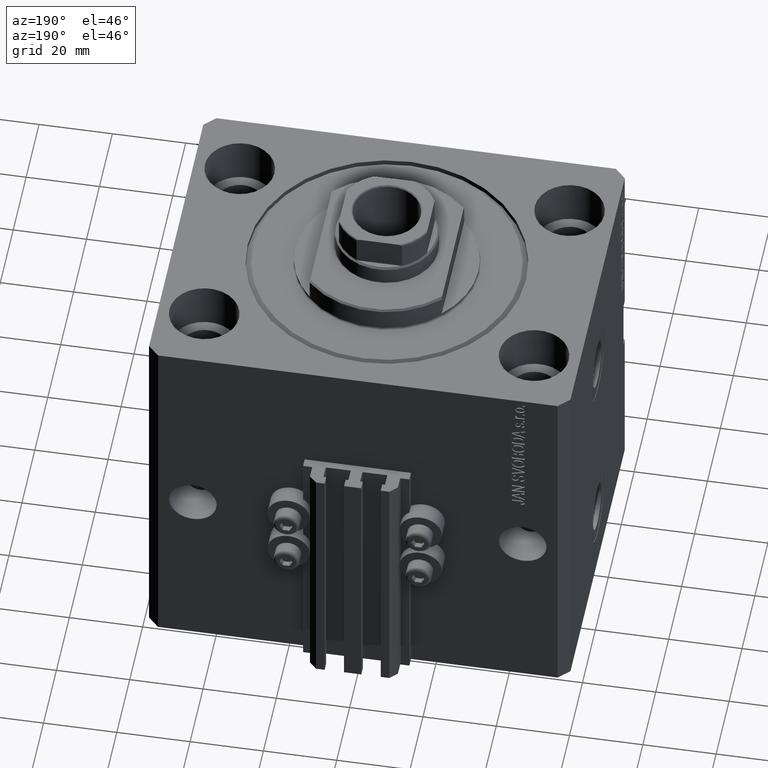
[diagram: clean part render]
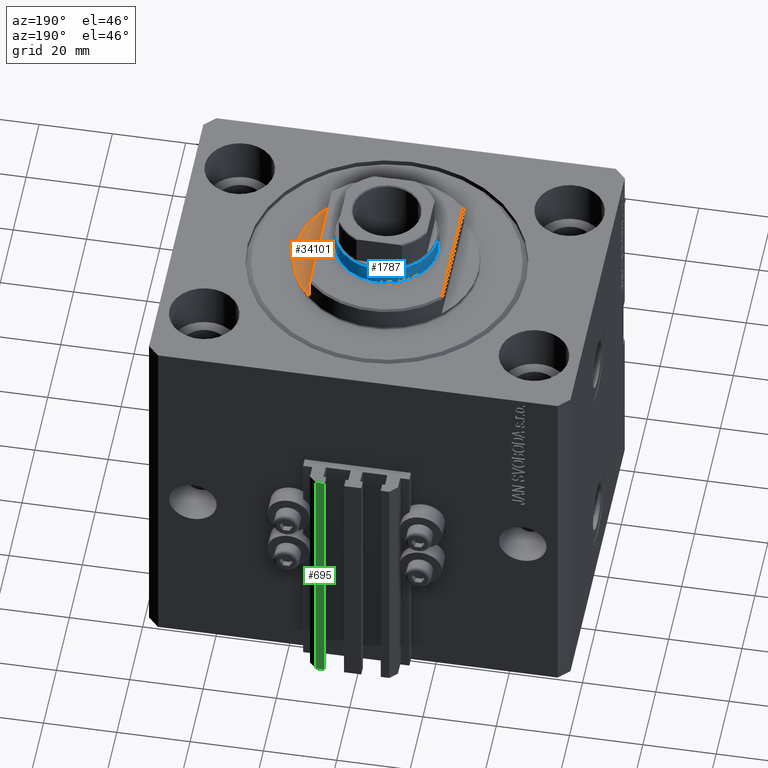
[diagram: same view with three faces highlighted in distinct colors, each labeled with its STEP entity id]
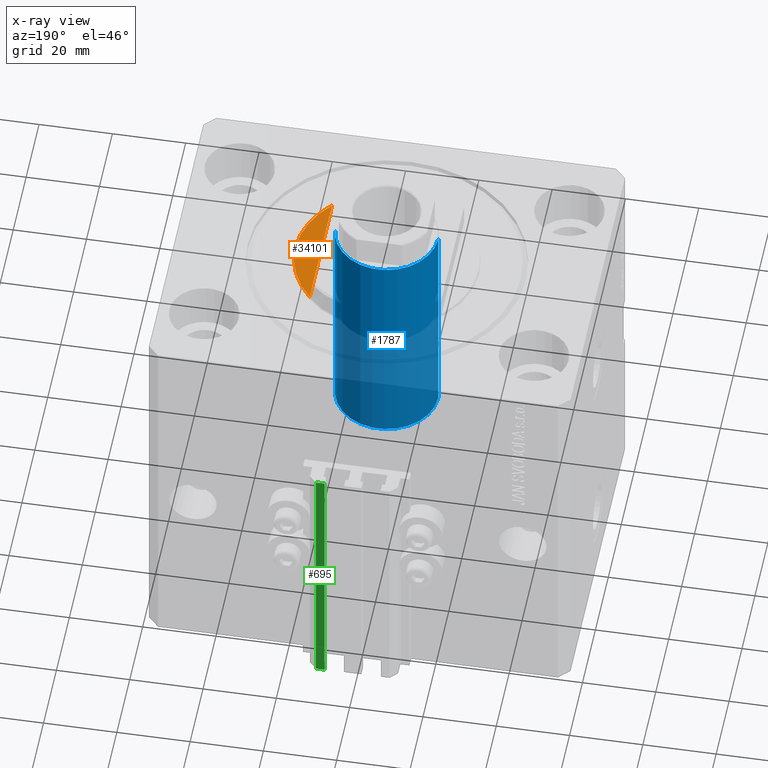
[diagram: x-ray of the same camera — body ghosted, the three highlighted faces saturated]
A machine part, auxiliary view with three faces highlighted in distinct colors.
The next image is the same camera in x-ray (body ghosted, the three faces saturated) — at least one of them is partly hidden behind the body in this view.
Their STEP definitions:

[orange] entity #34101 — the highlighted planar face has unit normal (0, 0, 1).
#1798 = DIRECTION ( 'NONE',  ( 0.000000000000000000, 0.000000000000000000, -1.000000000000000000 ) ) ;
#1898 = CIRCLE ( 'NONE', #40409, 25.00000000000000000 ) ;
#2171 = FACE_OUTER_BOUND ( 'NONE', #11130, .T. ) ;
#2416 = PLANE ( 'NONE',  #7955 ) ;
#2944 = DIRECTION ( 'NONE',  ( 0.000000000000000000, 0.000000000000000000, -1.000000000000000000 ) ) ;
#3942 = ORIENTED_EDGE ( 'NONE', *, *, #14580, .T. ) ;
#7955 = AXIS2_PLACEMENT_3D ( 'NONE', #46965, #43023, #32436 ) ;
#9362 = EDGE_CURVE ( 'NONE', #21837, #17000, #21436, .T. ) ;
#9873 = DIRECTION ( 'NONE',  ( -0.000000000000000000, -1.000000000000000000, -0.000000000000000000 ) ) ;
#11130 = EDGE_LOOP ( 'NONE', ( #35664, #3942, #34990 ) ) ;
#13053 = CIRCLE ( 'NONE', #32705, 25.00000000000000000 ) ;
#14580 = EDGE_CURVE ( 'NONE', #17551, #21837, #1898, .T. ) ;
#17000 = VERTEX_POINT ( 'NONE', #44602 ) ;
#17551 = VERTEX_POINT ( 'NONE', #43511 ) ;
#17743 = DIRECTION ( 'NONE',  ( -1.000000000000000000, 0.000000000000000000, 0.000000000000000000 ) ) ;
#17994 = CARTESIAN_POINT ( 'NONE',  ( -18.00000000000000000, -41.24318125460256113, -1.000000000000000000 ) ) ;
#21436 = LINE ( 'NONE', #17994, #35526 ) ;
#21837 = VERTEX_POINT ( 'NONE', #28411 ) ;
#22504 = EDGE_CURVE ( 'NONE', #17000, #17551, #13053, .T. ) ;
#27655 = DIRECTION ( 'NONE',  ( -1.000000000000000000, 0.000000000000000000, 0.000000000000000000 ) ) ;
#28411 = CARTESIAN_POINT ( 'NONE',  ( -18.00000000000000000, 17.34935157289747920, -1.000000000000000000 ) ) ;
#32436 = DIRECTION ( 'NONE',  ( -1.000000000000000000, 0.000000000000000000, -0.000000000000000000 ) ) ;
#32705 = AXIS2_PLACEMENT_3D ( 'NONE', #44763, #2944, #17743 ) ;
#34101 = ADVANCED_FACE ( 'NONE', ( #2171 ), #2416, .T. ) ;
#34990 = ORIENTED_EDGE ( 'NONE', *, *, #9362, .T. ) ;
#35526 = VECTOR ( 'NONE', #9873, 1000.000000000000000 ) ;
#35664 = ORIENTED_EDGE ( 'NONE', *, *, #22504, .T. ) ;
#40409 = AXIS2_PLACEMENT_3D ( 'NONE', #45881, #1798, #27655 ) ;
#43023 = DIRECTION ( 'NONE',  ( 0.000000000000000000, 0.000000000000000000, -1.000000000000000000 ) ) ;
#43511 = CARTESIAN_POINT ( 'NONE',  ( -25.00000000000000000, 3.061616997868383043E-15, -1.000000000000000000 ) ) ;
#44602 = CARTESIAN_POINT ( 'NONE',  ( -18.00000000000000000, -17.34935157289747920, -1.000000000000000000 ) ) ;
#44763 = CARTESIAN_POINT ( 'NONE',  ( 0.000000000000000000, 0.000000000000000000, -1.000000000000000000 ) ) ;
#45881 = CARTESIAN_POINT ( 'NONE',  ( 0.000000000000000000, 0.000000000000000000, -1.000000000000000000 ) ) ;
#46965 = CARTESIAN_POINT ( 'NONE',  ( 0.000000000000000000, 0.000000000000000000, -1.000000000000000000 ) ) ;

[blue] entity #1787 — the highlighted cylindrical surface (partial cylindrical patch) has radius 14 mm, axis along (-0, -0, -1).
#1141 = CARTESIAN_POINT ( 'NONE',  ( 14.00000000000000000, 1.714505518806294638E-15, 98.50000000000000000 ) ) ;
#1300 = ORIENTED_EDGE ( 'NONE', *, *, #17151, .T. ) ;
#1787 = ADVANCED_FACE ( 'NONE', ( #36692 ), #3224, .T. ) ;
#2075 = VECTOR ( 'NONE', #4146, 1000.000000000000000 ) ;
#3224 = CYLINDRICAL_SURFACE ( 'NONE', #45560, 14.00000000000000000 ) ;
#4146 = DIRECTION ( 'NONE',  ( -0.000000000000000000, -0.000000000000000000, -1.000000000000000000 ) ) ;
#7025 = CARTESIAN_POINT ( 'NONE',  ( 0.000000000000000000, 0.000000000000000000, 98.50000000000000000 ) ) ;
#8946 = VERTEX_POINT ( 'NONE', #1141 ) ;
#9881 = DIRECTION ( 'NONE',  ( 1.000000000000000000, 0.000000000000000000, 0.000000000000000000 ) ) ;
#12226 = AXIS2_PLACEMENT_3D ( 'NONE', #42841, #35941, #9881 ) ;
#12271 = LINE ( 'NONE', #30946, #14889 ) ;
#13724 = EDGE_CURVE ( 'NONE', #16287, #8946, #36480, .T. ) ;
#14647 = CARTESIAN_POINT ( 'NONE',  ( -14.00000000000000000, 0.000000000000000000, 37.00000000000000000 ) ) ;
#14889 = VECTOR ( 'NONE', #45970, 1000.000000000000000 ) ;
#15148 = DIRECTION ( 'NONE',  ( 1.000000000000000000, 0.000000000000000000, 0.000000000000000000 ) ) ;
#15153 = VERTEX_POINT ( 'NONE', #18963 ) ;
#15280 = AXIS2_PLACEMENT_3D ( 'NONE', #7025, #19090, #15148 ) ;
#16287 = VERTEX_POINT ( 'NONE', #29470 ) ;
#16930 = CIRCLE ( 'NONE', #12226, 14.00000000000000000 ) ;
#17151 = EDGE_CURVE ( 'NONE', #15153, #21115, #16930, .T. ) ;
#18262 = CARTESIAN_POINT ( 'NONE',  ( 0.000000000000000000, 0.000000000000000000, 99.00000000000000000 ) ) ;
#18963 = CARTESIAN_POINT ( 'NONE',  ( 14.00000000000000000, 1.714505518806294638E-15, 37.00000000000000000 ) ) ;
#19090 = DIRECTION ( 'NONE',  ( 0.000000000000000000, 0.000000000000000000, -1.000000000000000000 ) ) ;
#21115 = VERTEX_POINT ( 'NONE', #14647 ) ;
#22359 = EDGE_LOOP ( 'NONE', ( #35546, #46223, #1300, #22772 ) ) ;
#22772 = ORIENTED_EDGE ( 'NONE', *, *, #23207, .F. ) ;
#23207 = EDGE_CURVE ( 'NONE', #16287, #21115, #46456, .T. ) ;
#23387 = DIRECTION ( 'NONE',  ( -1.000000000000000000, 0.000000000000000000, 0.000000000000000000 ) ) ;
#29470 = CARTESIAN_POINT ( 'NONE',  ( -14.00000000000000000, 0.000000000000000000, 98.50000000000000000 ) ) ;
#30236 = EDGE_CURVE ( 'NONE', #8946, #15153, #12271, .T. ) ;
#30946 = CARTESIAN_POINT ( 'NONE',  ( 14.00000000000000000, 1.714505518806294638E-15, 99.00000000000000000 ) ) ;
#34896 = CARTESIAN_POINT ( 'NONE',  ( -14.00000000000000000, 0.000000000000000000, 99.00000000000000000 ) ) ;
#35546 = ORIENTED_EDGE ( 'NONE', *, *, #13724, .T. ) ;
#35941 = DIRECTION ( 'NONE',  ( 0.000000000000000000, 0.000000000000000000, 1.000000000000000000 ) ) ;
#36480 = CIRCLE ( 'NONE', #15280, 14.00000000000000000 ) ;
#36692 = FACE_OUTER_BOUND ( 'NONE', #22359, .T. ) ;
#42841 = CARTESIAN_POINT ( 'NONE',  ( 0.000000000000000000, 0.000000000000000000, 37.00000000000000000 ) ) ;
#45560 = AXIS2_PLACEMENT_3D ( 'NONE', #18262, #45771, #23387 ) ;
#45771 = DIRECTION ( 'NONE',  ( -0.000000000000000000, -0.000000000000000000, -1.000000000000000000 ) ) ;
#45970 = DIRECTION ( 'NONE',  ( -0.000000000000000000, -0.000000000000000000, -1.000000000000000000 ) ) ;
#46223 = ORIENTED_EDGE ( 'NONE', *, *, #30236, .T. ) ;
#46456 = LINE ( 'NONE', #34896, #2075 ) ;

[green] entity #695 — the highlighted planar face has unit normal (0, 1, 0).
#172 = VECTOR ( 'NONE', #1609, 1000.000000000000000 ) ;
#635 = DIRECTION ( 'NONE',  ( -1.000000000000000000, 0.000000000000000000, 0.000000000000000000 ) ) ;
#695 = ADVANCED_FACE ( 'NONE', ( #13386 ), #28374, .T. ) ;
#1029 = CARTESIAN_POINT ( 'NONE',  ( 9.999999999999998224, 53.00000000000000711, -105.0000000000000000 ) ) ;
#1609 = DIRECTION ( 'NONE',  ( 0.000000000000000000, 0.000000000000000000, 1.000000000000000000 ) ) ;
#2387 = VERTEX_POINT ( 'NONE', #34514 ) ;
#3785 = EDGE_CURVE ( 'NONE', #14989, #2387, #22603, .T. ) ;
#4215 = EDGE_CURVE ( 'NONE', #43974, #17666, #23025, .T. ) ;
#5554 = CARTESIAN_POINT ( 'NONE',  ( 9.999999999999998224, 53.00000000000000711, -105.0000000000000000 ) ) ;
#6286 = LINE ( 'NONE', #5554, #172 ) ;
#8269 = CARTESIAN_POINT ( 'NONE',  ( 9.999999999999998224, 53.00000000000000711, -33.00000000000000000 ) ) ;
#9091 = EDGE_CURVE ( 'NONE', #14989, #43974, #6286, .T. ) ;
#9945 = CARTESIAN_POINT ( 'NONE',  ( 9.999999999999998224, 53.00000000000000711, -105.0000000000000000 ) ) ;
#9960 = DIRECTION ( 'NONE',  ( 0.000000000000000000, 0.000000000000000000, 1.000000000000000000 ) ) ;
#10813 = CARTESIAN_POINT ( 'NONE',  ( 9.999999999999998224, 53.00000000000000711, -105.0000000000000000 ) ) ;
#13386 = FACE_OUTER_BOUND ( 'NONE', #18920, .T. ) ;
#13390 = CARTESIAN_POINT ( 'NONE',  ( 7.649999999999998579, 53.00000000000000711, -33.00000000000000000 ) ) ;
#14132 = CARTESIAN_POINT ( 'NONE',  ( 7.649999999999998579, 53.00000000000000711, -105.0000000000000000 ) ) ;
#14173 = VECTOR ( 'NONE', #40797, 1000.000000000000000 ) ;
#14989 = VERTEX_POINT ( 'NONE', #1029 ) ;
#17666 = VERTEX_POINT ( 'NONE', #13390 ) ;
#18920 = EDGE_LOOP ( 'NONE', ( #30740, #21258, #45549, #40194 ) ) ;
#19606 = VECTOR ( 'NONE', #9960, 1000.000000000000000 ) ;
#21258 = ORIENTED_EDGE ( 'NONE', *, *, #9091, .F. ) ;
#21508 = DIRECTION ( 'NONE',  ( 0.000000000000000000, 1.000000000000000000, -0.000000000000000000 ) ) ;
#21769 = LINE ( 'NONE', #14132, #19606 ) ;
#22603 = LINE ( 'NONE', #10813, #14173 ) ;
#23025 = LINE ( 'NONE', #8269, #43233 ) ;
#28374 = PLANE ( 'NONE',  #32132 ) ;
#28727 = EDGE_CURVE ( 'NONE', #2387, #17666, #21769, .T. ) ;
#28863 = DIRECTION ( 'NONE',  ( 0.000000000000000000, 0.000000000000000000, 1.000000000000000000 ) ) ;
#30740 = ORIENTED_EDGE ( 'NONE', *, *, #4215, .F. ) ;
#32132 = AXIS2_PLACEMENT_3D ( 'NONE', #9945, #21508, #28863 ) ;
#34514 = CARTESIAN_POINT ( 'NONE',  ( 7.649999999999998579, 53.00000000000000711, -105.0000000000000000 ) ) ;
#38519 = CARTESIAN_POINT ( 'NONE',  ( 9.999999999999998224, 53.00000000000000711, -33.00000000000000000 ) ) ;
#40194 = ORIENTED_EDGE ( 'NONE', *, *, #28727, .T. ) ;
#40797 = DIRECTION ( 'NONE',  ( -1.000000000000000000, 0.000000000000000000, 0.000000000000000000 ) ) ;
#43233 = VECTOR ( 'NONE', #635, 1000.000000000000000 ) ;
#43974 = VERTEX_POINT ( 'NONE', #38519 ) ;
#45549 = ORIENTED_EDGE ( 'NONE', *, *, #3785, .T. ) ;